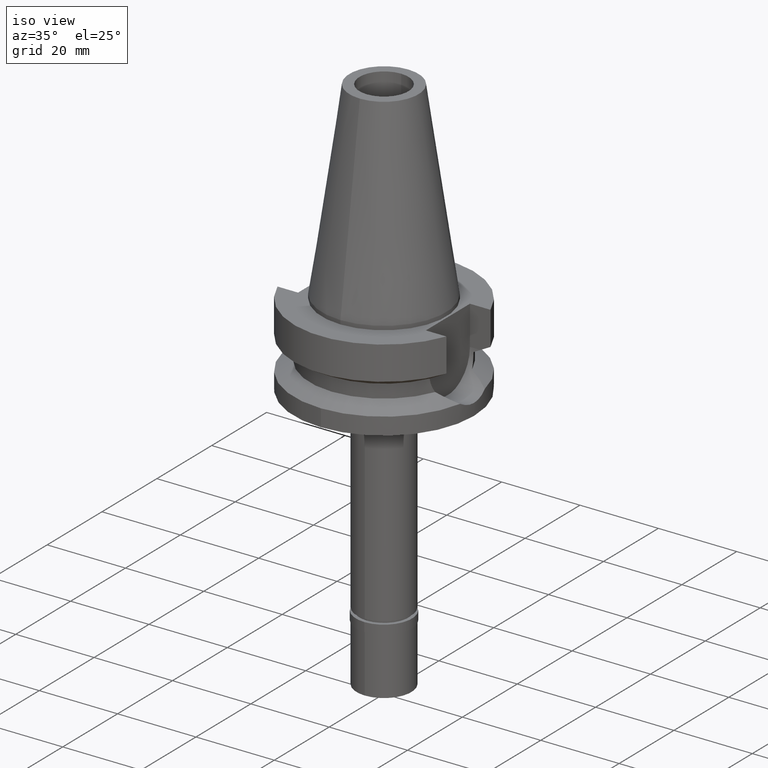
[diagram: clean part render]
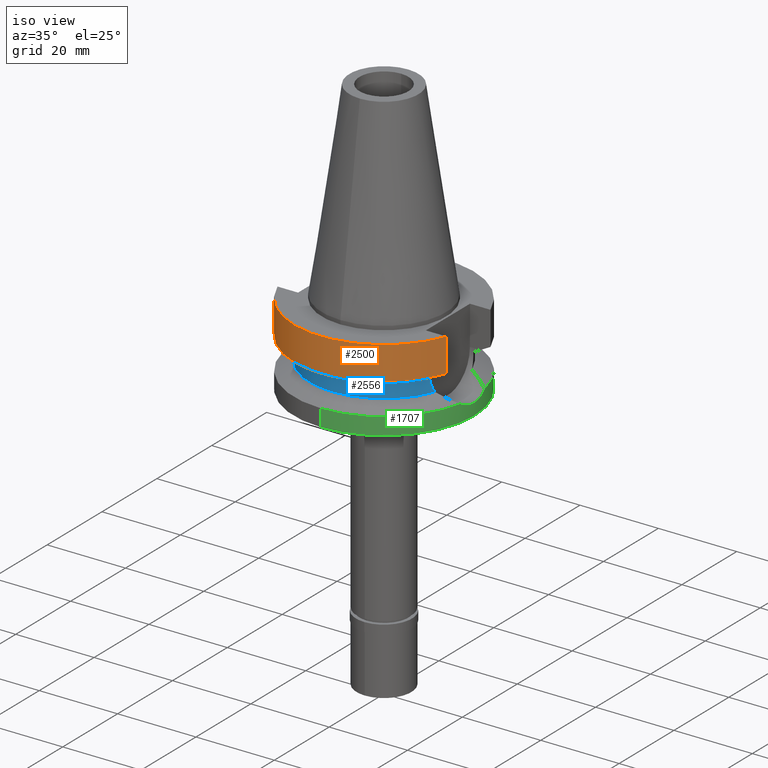
[diagram: same view with three faces highlighted in distinct colors, each labeled with its STEP entity id]
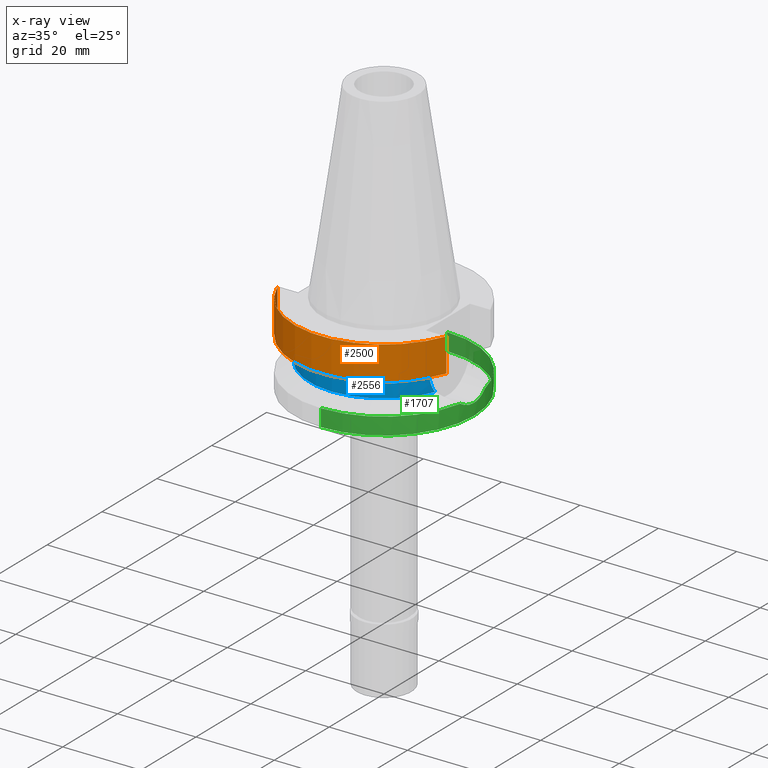
[diagram: x-ray of the same camera — body ghosted, the three highlighted faces saturated]
A machine part, iso view with three faces highlighted in distinct colors.
The next image is the same camera in x-ray (body ghosted, the three faces saturated) — at least one of them is partly hidden behind the body in this view.
Their STEP definitions:

[orange] entity #2500 — the highlighted cylindrical surface (partial cylindrical patch) has radius 23.0018 mm, axis along (0, 0, -1).
#71 = EDGE_CURVE ( 'NONE', #858, #297, #1113, .T. ) ;
#82 = VERTEX_POINT ( 'NONE', #2337 ) ;
#297 = VERTEX_POINT ( 'NONE', #1931 ) ;
#389 = CARTESIAN_POINT ( 'NONE',  ( -21.54715595432999820, -8.049999577544001639, -9.567211145671999262 ) ) ;
#450 = DIRECTION ( 'NONE',  ( 0.0000000000000000000, 0.0000000000000000000, -1.000000000000000000 ) ) ;
#512 = EDGE_LOOP ( 'NONE', ( #1285, #1768, #828, #1675 ) ) ;
#578 = VERTEX_POINT ( 'NONE', #2753 ) ;
#608 = AXIS2_PLACEMENT_3D ( 'NONE', #893, #859, #1526 ) ;
#623 = CYLINDRICAL_SURFACE ( 'NONE', #2025, 23.00179173279000011 ) ;
#762 = CARTESIAN_POINT ( 'NONE',  ( 21.54715579650000024, -8.050000000000000711, -1.000000000000000000 ) ) ;
#828 = ORIENTED_EDGE ( 'NONE', *, *, #2018, .F. ) ;
#858 = VERTEX_POINT ( 'NONE', #389 ) ;
#859 = DIRECTION ( 'NONE',  ( 0.0000000000000000000, 0.0000000000000000000, -1.000000000000000000 ) ) ;
#893 = CARTESIAN_POINT ( 'NONE',  ( 0.0000000000000000000, 1.899672114836999856E-14, -0.9999999999999000799 ) ) ;
#1031 = LINE ( 'NONE', #2108, #1570 ) ;
#1113 = CIRCLE ( 'NONE', #2566, 23.00179173279000011 ) ;
#1114 = CIRCLE ( 'NONE', #608, 23.00179173279000011 ) ;
#1177 = DIRECTION ( 'NONE',  ( 0.0000000000000000000, 0.0000000000000000000, 1.000000000000000000 ) ) ;
#1190 = CARTESIAN_POINT ( 'NONE',  ( 0.0000000000000000000, 1.093341284896999988E-14, -9.567208369710998639 ) ) ;
#1285 = ORIENTED_EDGE ( 'NONE', *, *, #2092, .F. ) ;
#1526 = DIRECTION ( 'NONE',  ( 0.0000000000000000000, -1.000000000000000000, 0.0000000000000000000 ) ) ;
#1570 = VECTOR ( 'NONE', #2123, 1000.000000000000114 ) ;
#1675 = ORIENTED_EDGE ( 'NONE', *, *, #2400, .T. ) ;
#1748 = FACE_OUTER_BOUND ( 'NONE', #512, .T. ) ;
#1768 = ORIENTED_EDGE ( 'NONE', *, *, #71, .T. ) ;
#1886 = DIRECTION ( 'NONE',  ( 0.0000000000000000000, -1.000000000000000000, 0.0000000000000000000 ) ) ;
#1931 = CARTESIAN_POINT ( 'NONE',  ( 21.54715579650000024, -8.050000000000000711, -9.567208369710998639 ) ) ;
#2018 = EDGE_CURVE ( 'NONE', #578, #297, #2764, .T. ) ;
#2025 = AXIS2_PLACEMENT_3D ( 'NONE', #2646, #450, #2635 ) ;
#2092 = EDGE_CURVE ( 'NONE', #858, #82, #1031, .T. ) ;
#2108 = CARTESIAN_POINT ( 'NONE',  ( -21.54715595432999820, -8.049999577544001639, -9.567211145671999262 ) ) ;
#2123 = DIRECTION ( 'NONE',  ( 1.842247677261992558E-08, -4.931077834718982456E-08, 0.9999999999999985567 ) ) ;
#2130 = DIRECTION ( 'NONE',  ( -9.129686183793688433E-08, -2.443710705671914470E-07, -0.9999999999999659162 ) ) ;
#2337 = CARTESIAN_POINT ( 'NONE',  ( -21.54715579650000024, -8.050000000000000711, -1.000000000000000000 ) ) ;
#2400 = EDGE_CURVE ( 'NONE', #578, #82, #1114, .T. ) ;
#2415 = VECTOR ( 'NONE', #2130, 1000.000000000000114 ) ;
#2500 = ADVANCED_FACE ( 'NONE', ( #1748 ), #623, .T. ) ;
#2566 = AXIS2_PLACEMENT_3D ( 'NONE', #1190, #1177, #1886 ) ;
#2635 = DIRECTION ( 'NONE',  ( 0.0000000000000000000, -1.000000000000000000, 0.0000000000000000000 ) ) ;
#2646 = CARTESIAN_POINT ( 'NONE',  ( 0.0000000000000000000, 1.899672114836999856E-14, 55.12000000000000455 ) ) ;
#2753 = CARTESIAN_POINT ( 'NONE',  ( 21.54715579650000024, -8.050000000000000711, -1.000000000000000000 ) ) ;
#2764 = LINE ( 'NONE', #762, #2415 ) ;

[blue] entity #2556 — the highlighted cylindrical surface (partial cylindrical patch) has radius 19.0018 mm, axis along (0, 0, -1).
#123 = CARTESIAN_POINT ( 'NONE',  ( 17.36837036096775932, -7.707981440709562371, -13.27282778387558437 ) ) ;
#141 = VERTEX_POINT ( 'NONE', #2132 ) ;
#171 = CARTESIAN_POINT ( 'NONE',  ( 17.38352545387003190, -7.673723835471032650, -13.38458801241330320 ) ) ;
#215 = CIRCLE ( 'NONE', #2491, 19.00179173279000011 ) ;
#341 = ORIENTED_EDGE ( 'NONE', *, *, #2820, .T. ) ;
#346 = CARTESIAN_POINT ( 'NONE',  ( 17.50281428986588494, -7.400176627259059003, -14.16641912263797209 ) ) ;
#374 = ORIENTED_EDGE ( 'NONE', *, *, #2196, .F. ) ;
#396 = CARTESIAN_POINT ( 'NONE',  ( -17.75928303705000033, -6.758398853744999712, -15.32339055352999857 ) ) ;
#408 = CARTESIAN_POINT ( 'NONE',  ( -17.51269496040724150, -7.374794055766042966, -14.18057197121308199 ) ) ;
#421 = ORIENTED_EDGE ( 'NONE', *, *, #1454, .F. ) ;
#461 = CARTESIAN_POINT ( 'NONE',  ( 17.75928303705000033, -6.758398853744999712, -15.32339055352999857 ) ) ;
#477 = DIRECTION ( 'NONE',  ( 0.0000000000000000000, -1.000000000000000000, 0.0000000000000000000 ) ) ;
#579 = CARTESIAN_POINT ( 'NONE',  ( -17.23729139295999957, -7.996491146611000467, -11.87660607773000088 ) ) ;
#635 = CARTESIAN_POINT ( 'NONE',  ( -17.26825608798807110, -7.929744833635923307, -12.45263463295231254 ) ) ;
#814 = CARTESIAN_POINT ( 'NONE',  ( 17.33949830114251967, -7.772922946181140880, -13.04957045325951448 ) ) ;
#830 = CARTESIAN_POINT ( 'NONE',  ( -17.43109314839040280, -7.564917561253274414, -13.70228136683659415 ) ) ;
#846 = CARTESIAN_POINT ( 'NONE',  ( -17.45916774024332341, -7.500111073790288074, -13.87569767890835060 ) ) ;
#978 = CARTESIAN_POINT ( 'NONE',  ( 17.23728651733000206, -7.996501750019998411, -11.87660739320999959 ) ) ;
#984 = CARTESIAN_POINT ( 'NONE',  ( 17.41936507452134464, -7.591859783510902737, -13.62698761805188497 ) ) ;
#1012 = CARTESIAN_POINT ( 'NONE',  ( -17.62308021171093486, -7.108328008164060741, -14.74102245920153464 ) ) ;
#1025 = CARTESIAN_POINT ( 'NONE',  ( -17.47651365515626054, -7.459704488211000850, -13.97666972183979972 ) ) ;
#1046 = CARTESIAN_POINT ( 'NONE',  ( 17.75928303705000033, -6.758398853744999712, -15.32339055352999857 ) ) ;
#1246 = CARTESIAN_POINT ( 'NONE',  ( 17.41224899685484218, -7.608177767616646214, -13.58036371506142537 ) ) ;
#1255 = CARTESIAN_POINT ( 'NONE',  ( -17.32988208414754183, -7.797407153364573240, -13.04852562439564601 ) ) ;
#1287 = VERTEX_POINT ( 'NONE', #1743 ) ;
#1454 = EDGE_CURVE ( 'NONE', #2814, #1287, #2841, .T. ) ;
#1477 = B_SPLINE_CURVE_WITH_KNOTS ( 'NONE', 3,
 ( #978, #2722, #1680, #1662, #814, #123, #171, #2383, #1246, #2774, #984, #1891, #346, #2177, #1046 ),
 .UNSPECIFIED., .F., .F.,
 ( 4, 2, 2, 1, 1, 1, 2, 2, 4 ),
 ( 0.0000000000000000000, 0.2500000000000170974, 0.3750000000000256462, 0.4375000000000299205, 0.4687500000000325295, 0.4843750000000338063, 0.4921875000000338063, 0.5000000000000338618, 1.000000000000000000 ),
 .UNSPECIFIED. ) ;
#1482 = DIRECTION ( 'NONE',  ( 0.0000000000000000000, -1.000000000000000000, 0.0000000000000000000 ) ) ;
#1659 = CARTESIAN_POINT ( 'NONE',  ( -17.68720968991348741, -6.947788530044996413, -15.03071809367214229 ) ) ;
#1662 = CARTESIAN_POINT ( 'NONE',  ( 17.32216776256478141, -7.811451360830371726, -12.90108491666667589 ) ) ;
#1680 = CARTESIAN_POINT ( 'NONE',  ( 17.27592865074884543, -7.913379398892026906, -12.45762904848730379 ) ) ;
#1691 = DIRECTION ( 'NONE',  ( 0.0000000000000000000, 0.0000000000000000000, -1.000000000000000000 ) ) ;
#1711 = CARTESIAN_POINT ( 'NONE',  ( -17.42469575608548382, -7.579628292599172035, -13.66142217252953195 ) ) ;
#1743 = CARTESIAN_POINT ( 'NONE',  ( -17.23729139295999957, -7.996491146611000467, -11.87660607773000088 ) ) ;
#1831 = CARTESIAN_POINT ( 'NONE',  ( 0.0000000000000000000, 1.022848384030000006E-14, -15.32339055352999857 ) ) ;
#1891 = CARTESIAN_POINT ( 'NONE',  ( 17.42098403763636938, -7.588143148053875464, -13.63750035187429610 ) ) ;
#1919 = CARTESIAN_POINT ( 'NONE',  ( -17.44023413050855709, -7.543863766573425167, -13.75976389724857540 ) ) ;
#1991 = CYLINDRICAL_SURFACE ( 'NONE', #2518, 19.00179173279000011 ) ;
#2005 = AXIS2_PLACEMENT_3D ( 'NONE', #2600, #1691, #1482 ) ;
#2034 = DIRECTION ( 'NONE',  ( 0.0000000000000000000, 0.0000000000000000000, 1.000000000000000000 ) ) ;
#2076 = EDGE_CURVE ( 'NONE', #2814, #2458, #215, .T. ) ;
#2132 = CARTESIAN_POINT ( 'NONE',  ( 17.23728651733000206, -7.996501750019998411, -11.87660739320999959 ) ) ;
#2177 = CARTESIAN_POINT ( 'NONE',  ( 17.61516098068464231, -7.137113464409137187, -14.73814568246613810 ) ) ;
#2196 = EDGE_CURVE ( 'NONE', #141, #2458, #1477, .T. ) ;
#2219 = FACE_OUTER_BOUND ( 'NONE', #2562, .T. ) ;
#2382 = ORIENTED_EDGE ( 'NONE', *, *, #2076, .T. ) ;
#2383 = CARTESIAN_POINT ( 'NONE',  ( 17.40246475582125996, -7.630563837980997910, -13.51509474751286355 ) ) ;
#2396 = CARTESIAN_POINT ( 'NONE',  ( -17.53880179780804838, -7.312723605805198090, -14.31912348461053952 ) ) ;
#2412 = CARTESIAN_POINT ( 'NONE',  ( -17.42724540378604203, -7.573766977290153690, -13.67775164290370071 ) ) ;
#2458 = VERTEX_POINT ( 'NONE', #461 ) ;
#2460 = CARTESIAN_POINT ( 'NONE',  ( 0.0000000000000000000, 1.899672114836999856E-14, 55.12000000000000455 ) ) ;
#2471 = DIRECTION ( 'NONE',  ( 0.0000000000000000000, 0.0000000000000000000, -1.000000000000000000 ) ) ;
#2491 = AXIS2_PLACEMENT_3D ( 'NONE', #1831, #2034, #2501 ) ;
#2501 = DIRECTION ( 'NONE',  ( 0.0000000000000000000, -1.000000000000000000, 0.0000000000000000000 ) ) ;
#2518 = AXIS2_PLACEMENT_3D ( 'NONE', #2460, #2471, #477 ) ;
#2541 = CARTESIAN_POINT ( 'NONE',  ( -17.75928303705000033, -6.758398853744999712, -15.32339055352999857 ) ) ;
#2556 = ADVANCED_FACE ( 'NONE', ( #2219 ), #1991, .T. ) ;
#2562 = EDGE_LOOP ( 'NONE', ( #421, #2382, #374, #341 ) ) ;
#2600 = CARTESIAN_POINT ( 'NONE',  ( 0.0000000000000000000, 1.093341284896999988E-14, -11.87660944646999894 ) ) ;
#2722 = CARTESIAN_POINT ( 'NONE',  ( 17.25277258142791936, -7.963111049229570249, -12.16468846142762672 ) ) ;
#2727 = CIRCLE ( 'NONE', #2005, 19.00179173279000011 ) ;
#2774 = CARTESIAN_POINT ( 'NONE',  ( 17.41650965516737415, -7.598410173945524093, -13.60833792211871085 ) ) ;
#2799 = CARTESIAN_POINT ( 'NONE',  ( -17.42361137045860175, -7.582120203356794264, -13.65445023804094227 ) ) ;
#2814 = VERTEX_POINT ( 'NONE', #2541 ) ;
#2820 = EDGE_CURVE ( 'NONE', #141, #1287, #2727, .T. ) ;
#2841 = B_SPLINE_CURVE_WITH_KNOTS ( 'NONE', 3,
 ( #396, #1659, #1012, #2396, #408, #1025, #846, #1919, #830, #2412, #1711, #2799, #1255, #635, #579 ),
 .UNSPECIFIED., .F., .F.,
 ( 4, 2, 2, 1, 1, 1, 2, 2, 4 ),
 ( 0.0000000000000000000, 0.2499999999999895084, 0.3749999999999842348, 0.4374999999999820699, 0.4687499999999819034, 0.4843749999999815703, 0.4921874999999810707, 0.4999999999999805711, 1.000000000000000000 ),
 .UNSPECIFIED. ) ;

[green] entity #1707 — the highlighted cylindrical surface (partial cylindrical patch) has radius 23.0018 mm, axis along (0, 0, -1).
#25 = CARTESIAN_POINT ( 'NONE',  ( 22.91610977022298101, 1.985559376003740661, -18.75241625046312777 ) ) ;
#64 = CARTESIAN_POINT ( 'NONE',  ( 22.92808681875386156, 1.839701739936724589, -18.78759720279263234 ) ) ;
#111 = CARTESIAN_POINT ( 'NONE',  ( 22.55969031021000148, -4.488072640469000341, -17.63279163029000074 ) ) ;
#132 = ORIENTED_EDGE ( 'NONE', *, *, #2170, .F. ) ;
#217 = AXIS2_PLACEMENT_3D ( 'NONE', #2650, #835, #429 ) ;
#244 = DIRECTION ( 'NONE',  ( 0.0000000000000000000, 0.0000000000000000000, -1.000000000000000000 ) ) ;
#259 = CARTESIAN_POINT ( 'NONE',  ( 0.0000000000000000000, 23.00179173279000011, -17.63279163029000074 ) ) ;
#305 = CARTESIAN_POINT ( 'NONE',  ( 22.69681452215624162, -3.748130284596748574, -18.08542766432472959 ) ) ;
#311 = DIRECTION ( 'NONE',  ( 0.0000000000000000000, 1.000000000000000000, 0.0000000000000000000 ) ) ;
#323 = CARTESIAN_POINT ( 'NONE',  ( 0.0000000000000000000, -23.00179173279000011, -22.00000000000000000 ) ) ;
#345 = CARTESIAN_POINT ( 'NONE',  ( 22.88494660143903303, 2.314195746953561894, -18.66019597702436528 ) ) ;
#371 = DIRECTION ( 'NONE',  ( 0.0000000000000000000, -2.440492903962000069E-14, -1.000000000000000000 ) ) ;
#409 = CARTESIAN_POINT ( 'NONE',  ( 23.00179173279000722, 0.3819333259085578303, -19.00000000000000355 ) ) ;
#423 = CARTESIAN_POINT ( 'NONE',  ( 22.95019829296470704, 1.547805031536005238, -18.85231163679012667 ) ) ;
#429 = DIRECTION ( 'NONE',  ( 0.0000000000000000000, -1.000000000000000000, 0.0000000000000000000 ) ) ;
#449 = CARTESIAN_POINT ( 'NONE',  ( 22.99196441091851639, 0.7694926620266897555, -18.97277314803948300 ) ) ;
#467 = CARTESIAN_POINT ( 'NONE',  ( 22.88631110380603673, 2.300664619856309656, -18.66424666404904542 ) ) ;
#560 = CARTESIAN_POINT ( 'NONE',  ( 22.83570449312282946, -2.758039583972444753, -18.51337649743196323 ) ) ;
#636 = EDGE_CURVE ( 'NONE', #1838, #787, #1438, .T. ) ;
#667 = DIRECTION ( 'NONE',  ( 0.0000000000000000000, 0.0000000000000000000, -1.000000000000000000 ) ) ;
#668 = ORIENTED_EDGE ( 'NONE', *, *, #636, .T. ) ;
#704 = VERTEX_POINT ( 'NONE', #1490 ) ;
#761 = CARTESIAN_POINT ( 'NONE',  ( 22.80244967722573435, -3.023463611785943250, -18.41303914922510998 ) ) ;
#787 = VERTEX_POINT ( 'NONE', #788 ) ;
#788 = CARTESIAN_POINT ( 'NONE',  ( 0.0000000000000000000, 23.00179173279000011, -22.00000000000000000 ) ) ;
#822 = LINE ( 'NONE', #2386, #2237 ) ;
#835 = DIRECTION ( 'NONE',  ( 0.0000000000000000000, 0.0000000000000000000, 1.000000000000000000 ) ) ;
#869 = ORIENTED_EDGE ( 'NONE', *, *, #1694, .T. ) ;
#879 = CYLINDRICAL_SURFACE ( 'NONE', #2134, 23.00179173279000011 ) ;
#948 = CARTESIAN_POINT ( 'NONE',  ( 22.88263405114387794, -2.336961712900543553, -18.65332846911902820 ) ) ;
#976 = CARTESIAN_POINT ( 'NONE',  ( 22.77785756481662105, -3.203224344129610213, -18.33795851009978506 ) ) ;
#994 = VERTEX_POINT ( 'NONE', #1146 ) ;
#1054 = CARTESIAN_POINT ( 'NONE',  ( 22.70651122611916506, 3.750064444225128302, -18.12842797169423648 ) ) ;
#1099 = CARTESIAN_POINT ( 'NONE',  ( 0.0000000000000000000, -23.00179173279000011, -17.63279163029000074 ) ) ;
#1139 = CARTESIAN_POINT ( 'NONE',  ( 22.90052425194243568, 2.155366592251635627, -18.70637377856537498 ) ) ;
#1146 = CARTESIAN_POINT ( 'NONE',  ( 0.0000000000000000000, -23.00179173279000011, -17.63279163029000074 ) ) ;
#1156 = CARTESIAN_POINT ( 'NONE',  ( 22.86817288580973440, -2.474875983369394739, -18.61035642006909541 ) ) ;
#1174 = CARTESIAN_POINT ( 'NONE',  ( 22.87615014931510160, -2.399681272992731706, -18.63406859032714280 ) ) ;
#1211 = CARTESIAN_POINT ( 'NONE',  ( 22.81456907949322854, 3.007049171292649703, -18.45119275456184127 ) ) ;
#1308 = EDGE_CURVE ( 'NONE', #1446, #994, #2533, .T. ) ;
#1320 = FACE_OUTER_BOUND ( 'NONE', #2542, .T. ) ;
#1362 = VECTOR ( 'NONE', #2016, 1000.000000000000000 ) ;
#1378 = CARTESIAN_POINT ( 'NONE',  ( 22.96248198214385638, -1.550910452357963321, -18.89044686695367048 ) ) ;
#1426 = CARTESIAN_POINT ( 'NONE',  ( 22.85142356289223997, -2.626377766003702430, -18.56047524286242378 ) ) ;
#1438 = CIRCLE ( 'NONE', #217, 23.00179173279000011 ) ;
#1446 = VERTEX_POINT ( 'NONE', #1954 ) ;
#1490 = CARTESIAN_POINT ( 'NONE',  ( 22.55969031021000148, 4.488072640469000341, -17.63279163029000074 ) ) ;
#1497 = CARTESIAN_POINT ( 'NONE',  ( 22.96248244530406168, 1.352967724021246543, -18.88792197764696823 ) ) ;
#1506 = ORIENTED_EDGE ( 'NONE', *, *, #2615, .T. ) ;
#1548 = DIRECTION ( 'NONE',  ( 0.9807796963072338281, -0.1951183930630069618, 0.0000000000000000000 ) ) ;
#1606 = CARTESIAN_POINT ( 'NONE',  ( 0.0000000000000000000, 1.899672114836999856E-14, 55.12000000000000455 ) ) ;
#1618 = CARTESIAN_POINT ( 'NONE',  ( 0.0000000000000000000, 1.022848384030000006E-14, -17.63279163029000074 ) ) ;
#1694 = EDGE_CURVE ( 'NONE', #994, #1838, #2643, .T. ) ;
#1707 = ADVANCED_FACE ( 'NONE', ( #1320 ), #879, .T. ) ;
#1715 = CIRCLE ( 'NONE', #2558, 23.00179173279000011 ) ;
#1757 = B_SPLINE_CURVE_WITH_KNOTS ( 'NONE', 3,
 ( #111, #2304, #305, #976, #761, #560, #1426, #1156, #1174, #2350, #1815, #948, #1378, #2063, #1851 ),
 .UNSPECIFIED., .F., .F.,
 ( 4, 2, 2, 1, 1, 1, 2, 2, 4 ),
 ( 0.0000000000000000000, 0.2500000000000049960, 0.3750000000000079381, 0.4375000000000091593, 0.4687500000000093814, 0.4843750000000099365, 0.4921875000000100475, 0.5000000000000101030, 1.000000000000000000 ),
 .UNSPECIFIED. ) ;
#1815 = CARTESIAN_POINT ( 'NONE',  ( 22.88168734312353081, -2.346202234336246750, -18.65051686632959971 ) ) ;
#1830 = AXIS2_PLACEMENT_3D ( 'NONE', #2668, #667, #1548 ) ;
#1838 = VERTEX_POINT ( 'NONE', #323 ) ;
#1851 = CARTESIAN_POINT ( 'NONE',  ( 23.00179173279000011, 0.0000000000000000000, -19.00000000000000000 ) ) ;
#1882 = EDGE_CURVE ( 'NONE', #1446, #2238, #1757, .T. ) ;
#1906 = CARTESIAN_POINT ( 'NONE',  ( 23.00179173279000011, 0.0000000000000000000, -19.00000000000000000 ) ) ;
#1953 = ORIENTED_EDGE ( 'NONE', *, *, #1308, .T. ) ;
#1954 = CARTESIAN_POINT ( 'NONE',  ( 22.55969031021000148, -4.488072640469000341, -17.63279163029000074 ) ) ;
#1983 = EDGE_CURVE ( 'NONE', #2124, #787, #822, .T. ) ;
#2013 = CARTESIAN_POINT ( 'NONE',  ( 22.88872954629784928, 2.276464386678692886, -18.67142274344787367 ) ) ;
#2016 = DIRECTION ( 'NONE',  ( 0.0000000000000000000, 2.359143140496999862E-14, -1.000000000000000000 ) ) ;
#2044 = DIRECTION ( 'NONE',  ( 0.0000000000000000000, 0.0000000000000000000, -1.000000000000000000 ) ) ;
#2063 = CARTESIAN_POINT ( 'NONE',  ( 23.00179173279000011, -0.7639037507147177219, -19.00000000000000000 ) ) ;
#2124 = VERTEX_POINT ( 'NONE', #259 ) ;
#2134 = AXIS2_PLACEMENT_3D ( 'NONE', #1606, #244, #2543 ) ;
#2158 = CARTESIAN_POINT ( 'NONE',  ( 23.00179173279000011, 0.0000000000000000000, -19.00000000000000000 ) ) ;
#2170 = EDGE_CURVE ( 'NONE', #2238, #704, #2174, .T. ) ;
#2174 = B_SPLINE_CURVE_WITH_KNOTS ( 'NONE', 3,
 ( #2158, #409, #449, #1497, #423, #64, #25, #1139, #2449, #2013, #467, #345, #1211, #1054, #2624 ),
 .UNSPECIFIED., .F., .F.,
 ( 4, 2, 2, 1, 1, 1, 2, 2, 4 ),
 ( 0.0000000000000000000, 0.2499999999999981126, 0.3749999999999969469, 0.4374999999999963363, 0.4687499999999964473, 0.4843749999999968359, 0.4921874999999973355, 0.4999999999999977796, 1.000000000000000000 ),
 .UNSPECIFIED. ) ;
#2237 = VECTOR ( 'NONE', #371, 1000.000000000000000 ) ;
#2238 = VERTEX_POINT ( 'NONE', #1906 ) ;
#2304 = CARTESIAN_POINT ( 'NONE',  ( 22.63309688647185069, -4.119088053990467735, -17.88059669723580214 ) ) ;
#2350 = CARTESIAN_POINT ( 'NONE',  ( 22.87948381982739221, -2.367577328023908301, -18.64397183052148321 ) ) ;
#2386 = CARTESIAN_POINT ( 'NONE',  ( 0.0000000000000000000, 23.00179173279000011, -17.63279163029000074 ) ) ;
#2449 = CARTESIAN_POINT ( 'NONE',  ( 22.89232841905352345, 2.240154369944870272, -18.68209685463170189 ) ) ;
#2533 = CIRCLE ( 'NONE', #1830, 23.00179173279000366 ) ;
#2542 = EDGE_LOOP ( 'NONE', ( #1953, #869, #668, #2694, #1506, #132, #2571 ) ) ;
#2543 = DIRECTION ( 'NONE',  ( 0.0000000000000000000, -1.000000000000000000, 0.0000000000000000000 ) ) ;
#2558 = AXIS2_PLACEMENT_3D ( 'NONE', #1618, #2044, #311 ) ;
#2571 = ORIENTED_EDGE ( 'NONE', *, *, #1882, .F. ) ;
#2615 = EDGE_CURVE ( 'NONE', #2124, #704, #1715, .T. ) ;
#2624 = CARTESIAN_POINT ( 'NONE',  ( 22.55969031021000148, 4.488072640469000341, -17.63279163029000074 ) ) ;
#2643 = LINE ( 'NONE', #1099, #1362 ) ;
#2650 = CARTESIAN_POINT ( 'NONE',  ( 0.0000000000000000000, 1.899672114836999856E-14, -22.00000000000000000 ) ) ;
#2668 = CARTESIAN_POINT ( 'NONE',  ( 0.0000000000000000000, 1.022848384030000006E-14, -17.63279163029000074 ) ) ;
#2694 = ORIENTED_EDGE ( 'NONE', *, *, #1983, .F. ) ;